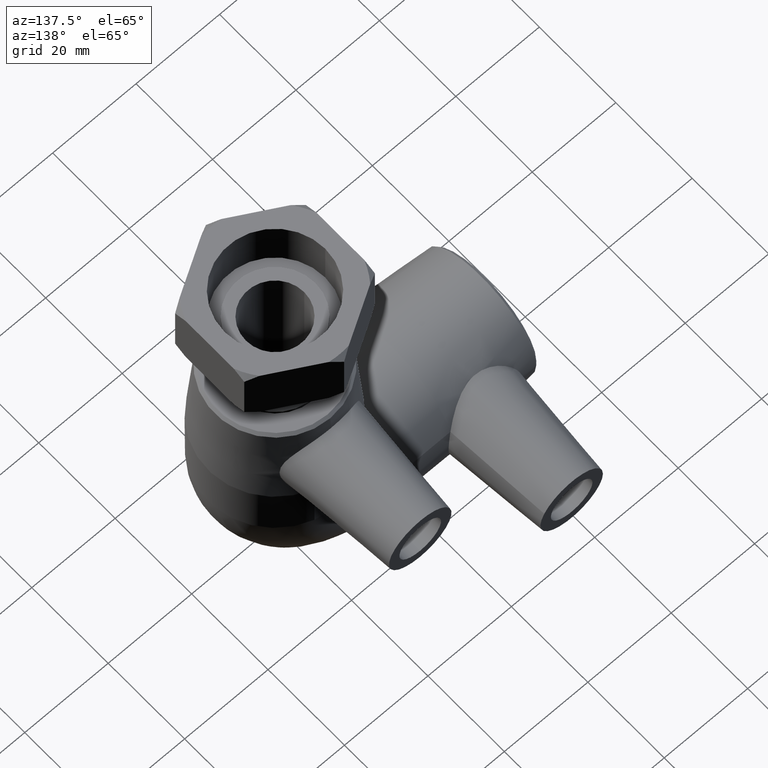
[diagram: clean part render]
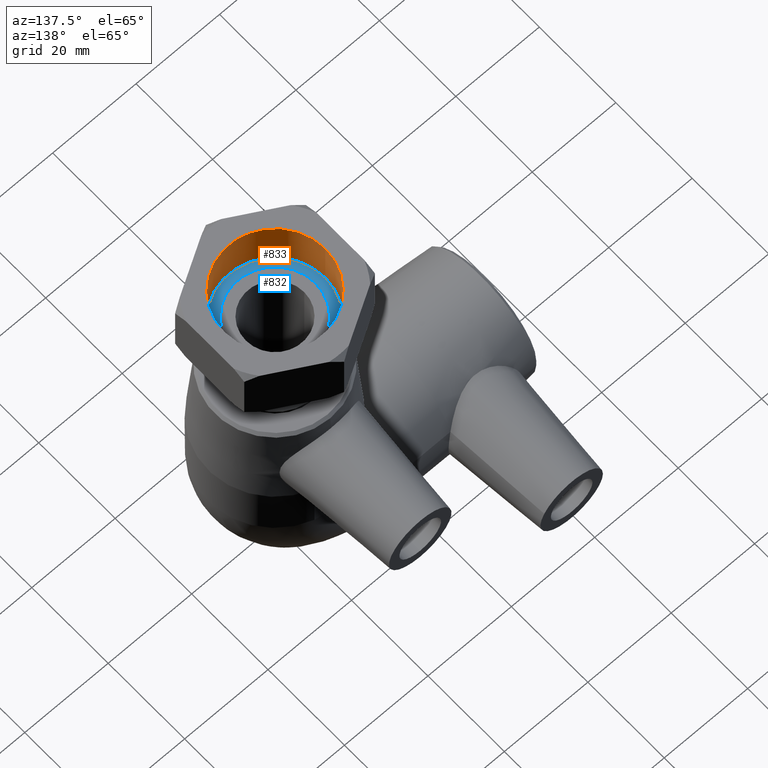
[diagram: same view with the hole feature highlighted: cylindrical wall and planar end face, labeled with their STEP entity ids]
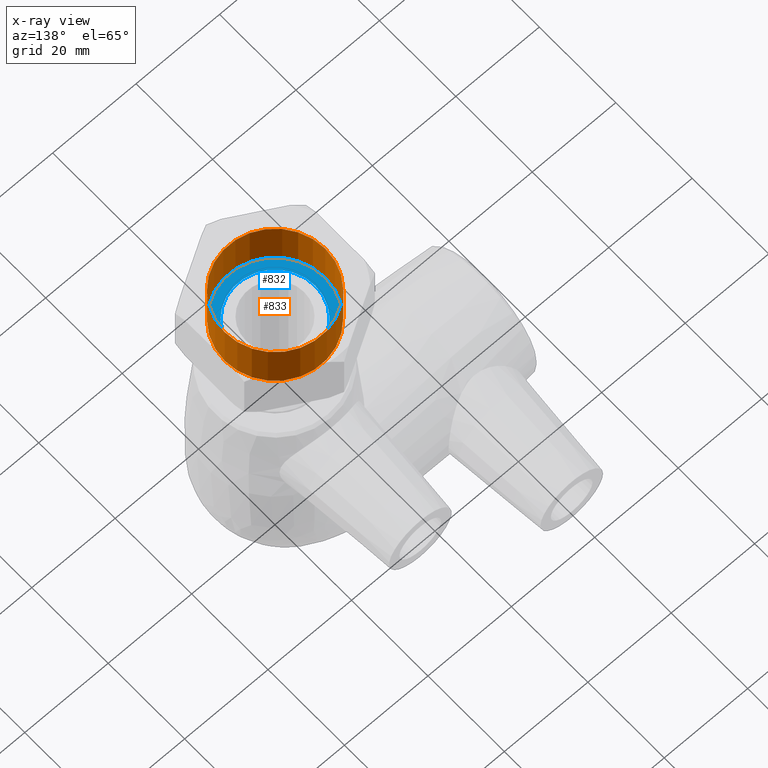
[diagram: x-ray of the same camera — body ghosted, the hole faces saturated]
A machine part, auxiliary view. The highlighted faces form one hole feature of diameter 24.117 mm: the cylindrical wall (entity #833, orange) and its adjacent planar end face (entity #832, blue) — they share a circular edge in the B-rep.
The next image is the same camera in x-ray (body ghosted, the hole faces saturated) — the bore reads through the body.
Wall:
#89=CYLINDRICAL_SURFACE('',#936,12.0585);
#142=FACE_BOUND('',#285,.T.);
#200=FACE_OUTER_BOUND('',#284,.T.);
#284=EDGE_LOOP('',(#716));
#285=EDGE_LOOP('',(#717));
#343=CIRCLE('',#900,12.0585);
#362=CIRCLE('',#935,12.0585);
#421=VERTEX_POINT('',#1402);
#444=VERTEX_POINT('',#1532);
#519=EDGE_CURVE('',#421,#421,#343,.T.);
#542=EDGE_CURVE('',#444,#444,#362,.T.);
#716=ORIENTED_EDGE('',*,*,#519,.F.);
#717=ORIENTED_EDGE('',*,*,#542,.T.);
#833=ADVANCED_FACE('',(#200,#142),#89,.F.);
#900=AXIS2_PLACEMENT_3D('',#1403,#1076,#1077);
#935=AXIS2_PLACEMENT_3D('',#1533,#1146,#1147);
#936=AXIS2_PLACEMENT_3D('',#1534,#1148,#1149);
#1076=DIRECTION('center_axis',(-2.66453525910037E-16,0.,-1.));
#1077=DIRECTION('ref_axis',(1.,0.,-2.66453525910037E-16));
#1146=DIRECTION('center_axis',(-2.66453525910037E-16,0.,-1.));
#1147=DIRECTION('ref_axis',(1.,0.,-2.66453525910037E-16));
#1148=DIRECTION('center_axis',(-2.66453525910037E-16,0.,-1.));
#1149=DIRECTION('ref_axis',(-1.,0.,2.55312573682298E-16));
#1402=CARTESIAN_POINT('',(-12.0585,0.,80.));
#1403=CARTESIAN_POINT('Origin',(2.1316282072803E-14,0.,80.));
#1532=CARTESIAN_POINT('',(-12.0585,0.,68.));
#1533=CARTESIAN_POINT('Origin',(1.81188397618825E-14,0.,68.));
#1534=CARTESIAN_POINT('Origin',(1.97175609173428E-14,0.,74.));
End face:
#112=PLANE('',#934);
#141=FACE_BOUND('',#283,.T.);
#199=FACE_OUTER_BOUND('',#282,.T.);
#282=EDGE_LOOP('',(#714));
#283=EDGE_LOOP('',(#715));
#361=CIRCLE('',#933,9.6468);
#362=CIRCLE('',#935,12.0585);
#443=VERTEX_POINT('',#1529);
#444=VERTEX_POINT('',#1532);
#541=EDGE_CURVE('',#443,#443,#361,.T.);
#542=EDGE_CURVE('',#444,#444,#362,.T.);
#714=ORIENTED_EDGE('',*,*,#542,.F.);
#715=ORIENTED_EDGE('',*,*,#541,.T.);
#832=ADVANCED_FACE('',(#199,#141),#112,.T.);
#933=AXIS2_PLACEMENT_3D('',#1530,#1142,#1143);
#934=AXIS2_PLACEMENT_3D('',#1531,#1144,#1145);
#935=AXIS2_PLACEMENT_3D('',#1533,#1146,#1147);
#1142=DIRECTION('center_axis',(-2.66453525910037E-16,0.,-1.));
#1143=DIRECTION('ref_axis',(1.,0.,-2.66453525910038E-16));
#1144=DIRECTION('center_axis',(2.66453525910037E-16,0.,1.));
#1145=DIRECTION('ref_axis',(1.,0.,0.));
#1146=DIRECTION('center_axis',(-2.66453525910037E-16,0.,-1.));
#1147=DIRECTION('ref_axis',(1.,0.,-2.66453525910037E-16));
#1529=CARTESIAN_POINT('',(-9.64679999999998,0.,68.));
#1530=CARTESIAN_POINT('Origin',(1.81188397618825E-14,0.,68.));
#1531=CARTESIAN_POINT('Origin',(-12.0585,0.,68.));
#1532=CARTESIAN_POINT('',(-12.0585,0.,68.));
#1533=CARTESIAN_POINT('Origin',(1.81188397618825E-14,0.,68.));